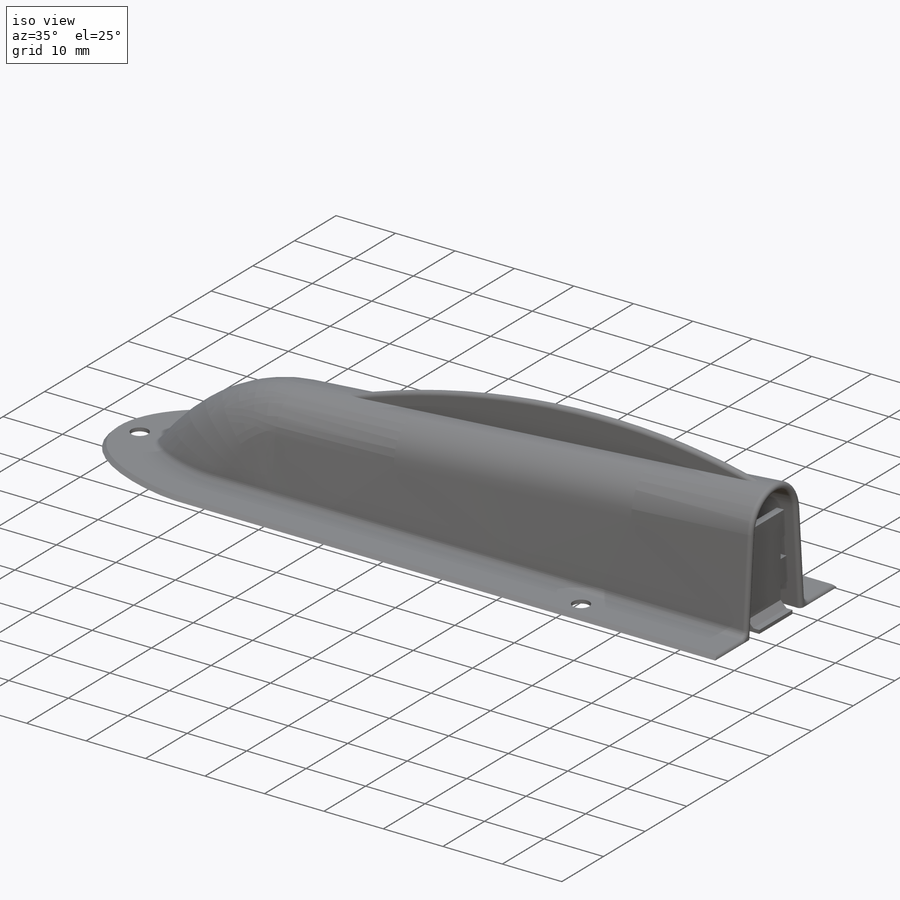
[diagram: iso view]
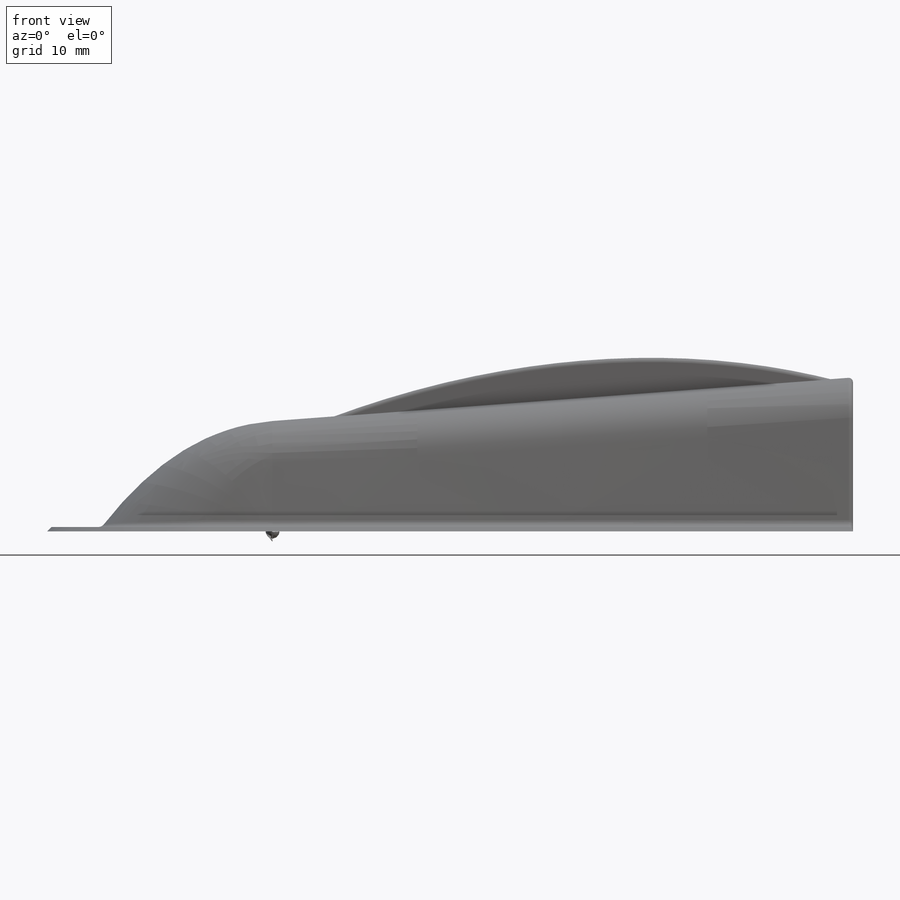
[diagram: front view]
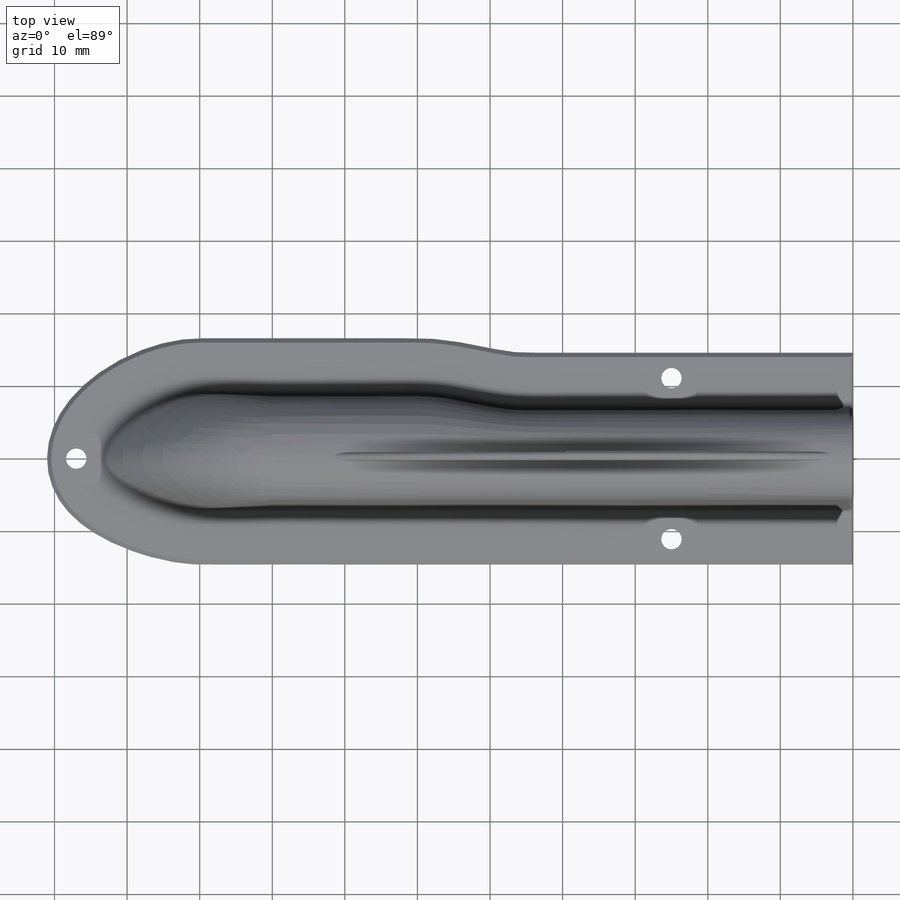
[diagram: top view]
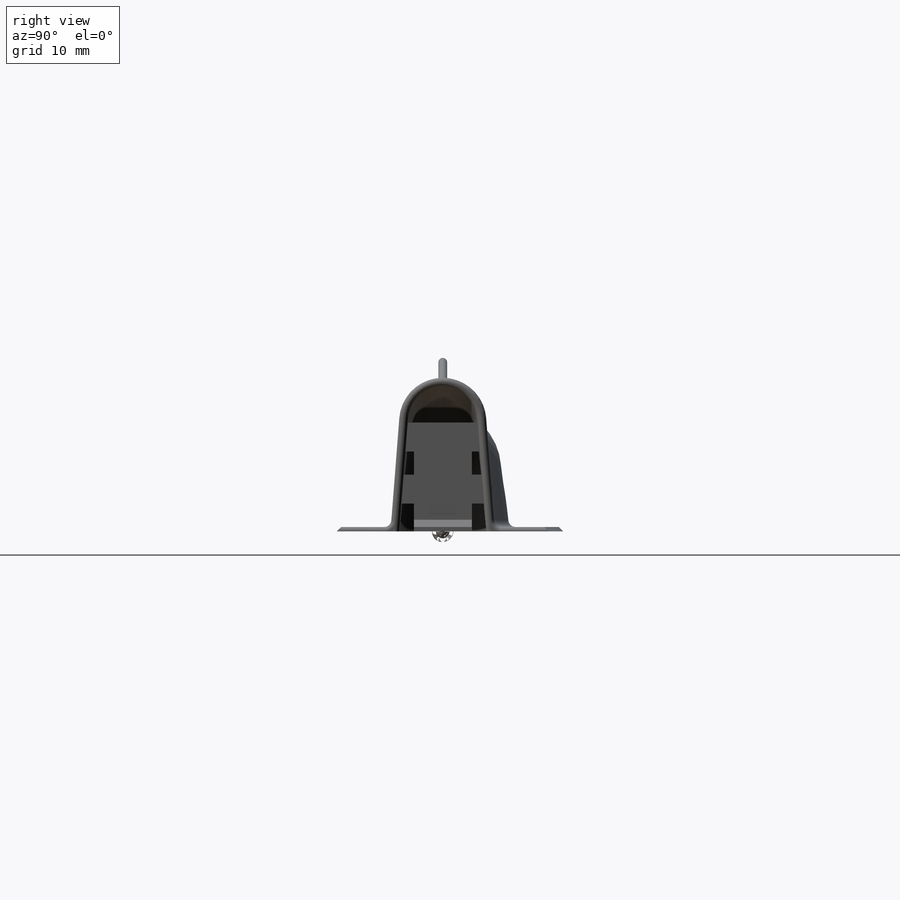
[diagram: right view]
SOLIDWORKS PART (.sldprt)
format: sldprt  version: not decoded by parser v0  size: 889,856 bytes
history: native  units: mm
features: sketch x18, plane x4, extrude x4, fillet x3, chamfer x2, material x1, shell x1, cut_extrude x1 (+12 scaffold rows collapsed)
feature tree (46):
  scaffold x12  (default folders/planes/origin — collapsed)
  material  "ABS"
  plane  "Plane2"  Offset=5mm
  plane  "Plane3"  Offset=15mm
  plane  "Plane4"  Offset=15mm
  plane  "Plane5"  Offset=80mm
  sketch  "Top Guide"  dims[D5=~26.681079mm D1=~23.935484mm D2=15.2mm D3=80.0mm D4=21.2mm]
  sketch  "Nose Base"  dims[c1.D1=12.4mm c1.D4=6.2mm c2.D1=21.2mm c2.D2=14.4mm c3.D1=6.2mm c3.D3=15.8mm c3.D4=~18.02704mm c4.D3=24.0mm c4.D1=10.0mm c5.D3=7.2mm c5.D2=9.2mm c5.D1=10.0mm c5.D4=10.0mm]
  sketch  "Nose Bulkhead"  dims[c1.D1=12.0mm c1.D3=16.0mm c2.D1=16.2mm c2.D2=~11.916395mm c2.D3=~5.958198mm c3.D1=8.0mm c3.D2=9.2mm c3.D3=~15.366386mm c3.D4=2.0mm c3.D5=7.2mm c3.D6=9.2mm]
  sketch  "Bulkhead 5"  dims[c1.D1=21.2mm c1.D2=15.2mm c1.D3=14.4mm c1.D4=~5.999205mm c2.D2=6.0mm c2.D4=23.2mm]
  sketch  "Bulkhead 4"  dims[D1=12.0mm D2=6.0mm]
  sketch  "Bulkhead 3"  dims[c1.D1=12.0mm c1.D2=16.0mm c2.D1=6.0mm c2.D3=2.0mm c2.D4=6.0mm]
  sketch  "BR Guide"
  sketch  "BL Guide"
  sketch  "TR Guide"
  sketch  "TL Guide"
  sketch  "Sketch2<12>"
  sketch  "Sketch4<9>"
  sketch  "Rib Guide"  dims[D1=0.6mm D2=0.6mm D5=10.0mm D6=1.0mm D7=5.0mm]
  shell  "Shell1"  Thickness=1.2mm
  fillet  "Rib Fillet"  Radius=0.6mm
  sketch  "Sketch1"  dims[D1=8.6mm]
  extrude  "Boss-Extrude1"  Depth=0.6mm
  sketch  "Sketch4"  dims[D1=2.0mm D2=2.0mm D3=5.2mm D4=2.0mm D5=2.0mm]
  extrude  "Boss-Extrude2"  Depth=0.6mm
  extrude  "Boss-Extrude3"  [1 undecoded]
  sketch  "Sketch4<3>"  dims[D1=15.0mm]
  sketch  "Sketch5"  dims[D1=4.0mm D2=4.0mm]
  extrude  "Boss-Extrude4"  [1 undecoded]
  chamfer  "Chamfer1"  Distance=0.6mm Angle=45deg
  fillet  "Fillet4"  Radius=1mm
  fillet  "Fillet5"  Radius=0.6mm
  sketch  "Sketch2"  dims[c1.D1=~5.274963mm c1.D3=2.5mm c1.D6=2.5mm c1.D7=2.8mm c2.D1=25.0mm c2.D2=3.5mm c2.D4=3.5mm c2.D5=25.0mm c2.D8=5.0mm c2.D9=~5.037115mm c3.D8=27.0mm]
  cut_extrude  "Cut-Extrude1"  [1 undecoded]
  chamfer  "Chamfer2"  Distance=1mm Angle=45deg
decode coverage: 20 of 29 modeling features carry decoded parameters
note: ~ marks probable driven/reference dimensions
note: 3 parameter values undecoded
summary: no parameter record found for 3 features
note: suppression state not decoded; provenance and decode notes live in map.json
